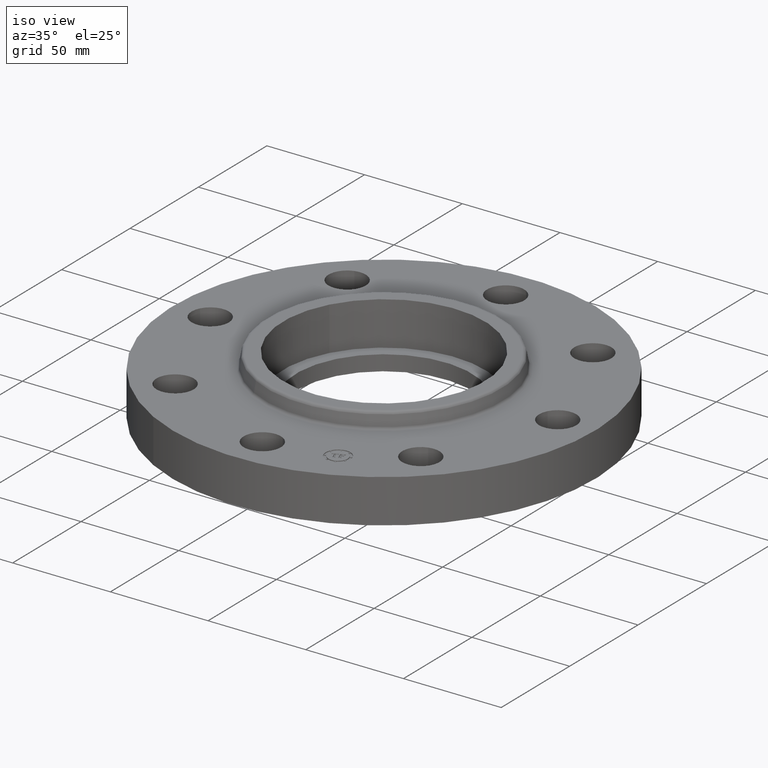
[diagram: clean part render]
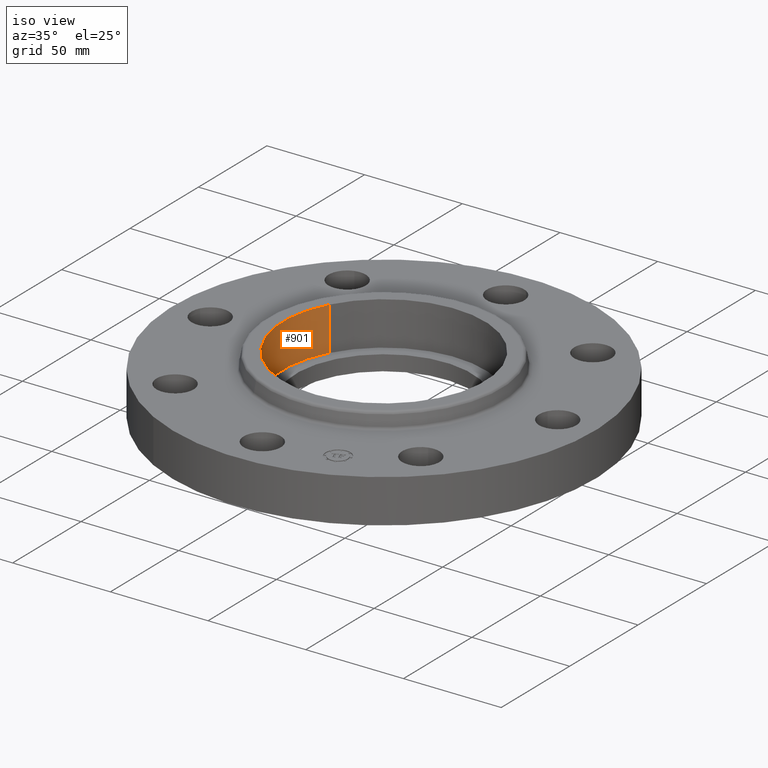
[diagram: same view with one face highlighted and labeled with its STEP entity id]
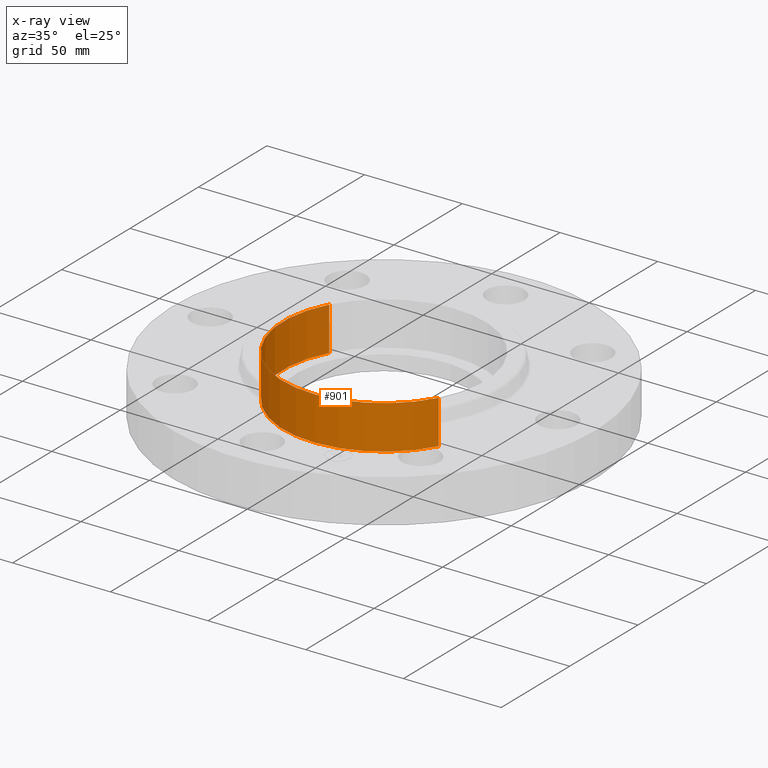
[diagram: x-ray of the same camera — body ghosted, the highlighted face saturated]
A machine part, iso view. The second image highlights one B-rep face of the part: STEP entity #901.
The next image is the same camera in x-ray: the body ghosted, the highlighted face saturated — about 0% of this face is hidden behind the body in this view.
In plain terms, the highlighted cylindrical surface (partial cylindrical patch) has radius 51.689 mm, axis along (0, 0, -1).
Its self-contained STEP definition (entity closure, byte-faithful):
#51=AXIS2_PLACEMENT_3D('Circle Axis2P3D',#49,#50,$) ;
#521=AXIS2_PLACEMENT_3D('Circle Axis2P3D',#519,#520,$) ;
#876=AXIS2_PLACEMENT_3D('Cylinder Axis2P3D',#873,#874,#875) ;
#44=CARTESIAN_POINT('Vertex',(-1.78588051345,0.975630971063,0.310000000001)) ;
#46=CARTESIAN_POINT('Vertex',(1.78588051345,-0.975630971063,0.310000000001)) ;
#49=CARTESIAN_POINT('Axis2P3D Location',(0.,-6.99353086378E-017,0.310000000001)) ;
#514=CARTESIAN_POINT('Vertex',(-1.78588051345,0.975630971063,1.19)) ;
#516=CARTESIAN_POINT('Vertex',(1.78588051345,-0.975630971063,1.19)) ;
#519=CARTESIAN_POINT('Axis2P3D Location',(6.99353086378E-017,2.79741234551E-016,1.19)) ;
#873=CARTESIAN_POINT('Axis2P3D Location',(0.,-6.99353086378E-017,1.18606299213)) ;
#878=CARTESIAN_POINT('Line Origine',(-1.78588051345,0.975630971063,0.750000000003)) ;
#883=CARTESIAN_POINT('Line Origine',(1.78588051345,-0.975630971063,0.750000000003)) ;
#50=DIRECTION('Axis2P3D Direction',(0.,0.,-0.0393700787402)) ;
#520=DIRECTION('Axis2P3D Direction',(0.,0.,-0.0393700787402)) ;
#874=DIRECTION('Axis2P3D Direction',(0.,0.,-0.0393700787402)) ;
#875=DIRECTION('Axis2P3D XDirection',(0.0345504945626,-0.0188750212049,0.)) ;
#879=DIRECTION('Vector Direction',(0.,0.,-0.0393700787402)) ;
#884=DIRECTION('Vector Direction',(0.,0.,-0.0393700787402)) ;
#880=VECTOR('Line Direction',#879,0.0393700787402) ;
#885=VECTOR('Line Direction',#884,0.0393700787402) ;
#896=ORIENTED_EDGE('',*,*,#523,.F.) ;
#897=ORIENTED_EDGE('',*,*,#887,.F.) ;
#898=ORIENTED_EDGE('',*,*,#53,.T.) ;
#899=ORIENTED_EDGE('',*,*,#882,.T.) ;
#901=ADVANCED_FACE('PartBody',(#900),#877,.F.) ;
#52=CIRCLE('generated circle',#51,2.03500000001) ;
#522=CIRCLE('generated circle',#521,2.03500000001) ;
#877=CYLINDRICAL_SURFACE('generated cylinder',#876,2.03500000001) ;
#53=EDGE_CURVE('',#47,#45,#52,.T.) ;
#523=EDGE_CURVE('',#517,#515,#522,.T.) ;
#882=EDGE_CURVE('',#45,#515,#881,.F.) ;
#887=EDGE_CURVE('',#47,#517,#886,.F.) ;
#895=EDGE_LOOP('',(#896,#897,#898,#899)) ;
#900=FACE_OUTER_BOUND('',#895,.T.) ;
#881=LINE('Line',#878,#880) ;
#886=LINE('Line',#883,#885) ;
#45=VERTEX_POINT('',#44) ;
#47=VERTEX_POINT('',#46) ;
#515=VERTEX_POINT('',#514) ;
#517=VERTEX_POINT('',#516) ;